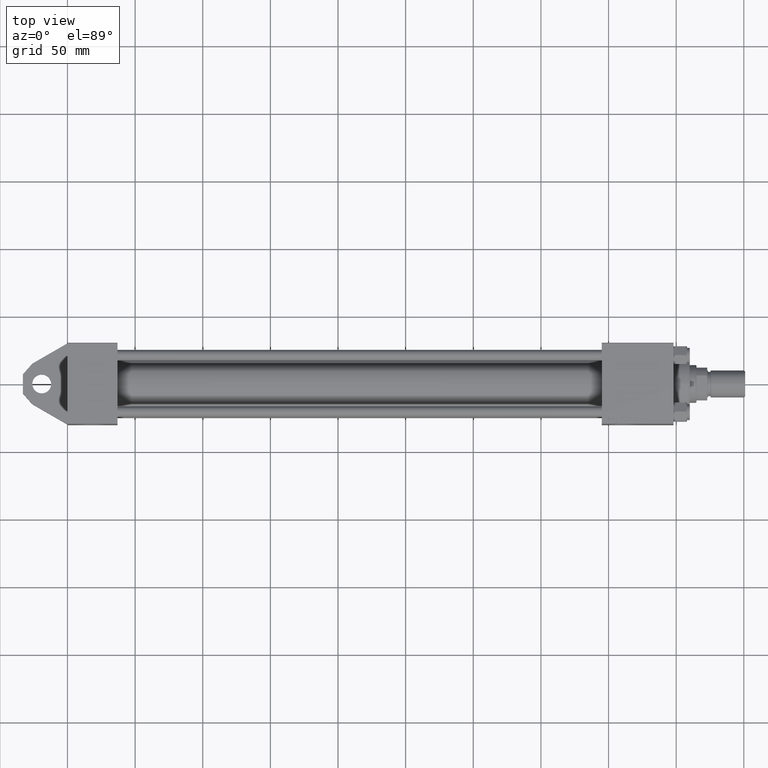
[diagram: clean part render]
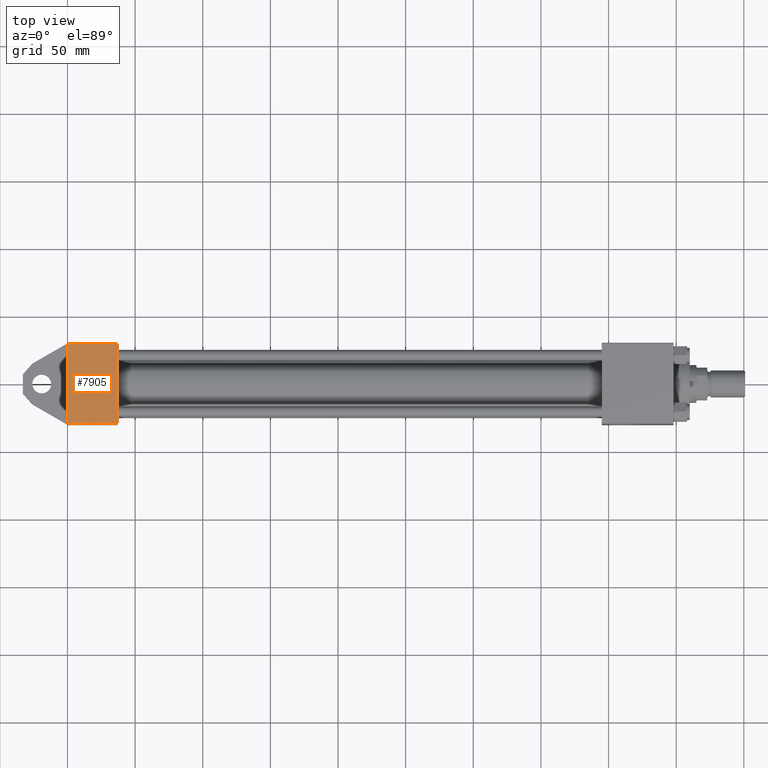
[diagram: same view with one face highlighted and labeled with its STEP entity id]
A machine part, top view. The second image highlights one B-rep face of the part: STEP entity #7905.
In plain terms, the highlighted planar face has unit normal (-0, 0, 1).
Its self-contained STEP definition (entity closure, byte-faithful):
#369 = DIRECTION ( 'NONE',  ( -1.000000000000000000, 0.000000000000000000, 0.000000000000000000 ) ) ;
#3788 = CARTESIAN_POINT ( 'NONE',  ( 0.000000000000000000, 29.99999999999999289, -29.50000000000000000 ) ) ;
#6187 = VERTEX_POINT ( 'NONE', #6929 ) ;
#6929 = CARTESIAN_POINT ( 'NONE',  ( 37.00000000000000000, 29.99999999999999289, 29.50000000000000000 ) ) ;
#7905 = ADVANCED_FACE ( 'NONE', ( #37569 ), #34025, .T. ) ;
#7982 = AXIS2_PLACEMENT_3D ( 'NONE', #12384, #19903, #44158 ) ;
#11589 = EDGE_CURVE ( 'NONE', #29034, #14293, #15934, .T. ) ;
#12054 = VECTOR ( 'NONE', #39588, 1000.000000000000000 ) ;
#12384 = CARTESIAN_POINT ( 'NONE',  ( 37.00000000000000000, 29.99999999999999289, 30.00000000000000000 ) ) ;
#14293 = VERTEX_POINT ( 'NONE', #3788 ) ;
#15934 = LINE ( 'NONE', #37592, #16368 ) ;
#16368 = VECTOR ( 'NONE', #29593, 1000.000000000000000 ) ;
#17476 = LINE ( 'NONE', #38903, #12054 ) ;
#19307 = VECTOR ( 'NONE', #20989, 1000.000000000000000 ) ;
#19903 = DIRECTION ( 'NONE',  ( -0.000000000000000000, 1.000000000000000000, 0.000000000000000000 ) ) ;
#20098 = ORIENTED_EDGE ( 'NONE', *, *, #31866, .T. ) ;
#20989 = DIRECTION ( 'NONE',  ( 1.000000000000000000, 0.000000000000000000, 0.000000000000000000 ) ) ;
#21206 = LINE ( 'NONE', #21903, #19307 ) ;
#21903 = CARTESIAN_POINT ( 'NONE',  ( 37.00000000000000000, 29.99999999999999289, 29.50000000000000000 ) ) ;
#24394 = CARTESIAN_POINT ( 'NONE',  ( 0.000000000000000000, 29.99999999999999289, 29.50000000000000000 ) ) ;
#24847 = CARTESIAN_POINT ( 'NONE',  ( 37.00000000000000000, 29.99999999999999289, -29.50000000000000000 ) ) ;
#25100 = EDGE_LOOP ( 'NONE', ( #27145, #20098, #37158, #44406 ) ) ;
#27145 = ORIENTED_EDGE ( 'NONE', *, *, #41011, .T. ) ;
#29034 = VERTEX_POINT ( 'NONE', #24394 ) ;
#29593 = DIRECTION ( 'NONE',  ( 0.000000000000000000, 0.000000000000000000, -1.000000000000000000 ) ) ;
#31866 = EDGE_CURVE ( 'NONE', #31995, #14293, #32593, .T. ) ;
#31995 = VERTEX_POINT ( 'NONE', #43894 ) ;
#32435 = EDGE_CURVE ( 'NONE', #29034, #6187, #21206, .T. ) ;
#32593 = LINE ( 'NONE', #24847, #45565 ) ;
#34025 = PLANE ( 'NONE',  #7982 ) ;
#37158 = ORIENTED_EDGE ( 'NONE', *, *, #11589, .F. ) ;
#37569 = FACE_OUTER_BOUND ( 'NONE', #25100, .T. ) ;
#37592 = CARTESIAN_POINT ( 'NONE',  ( 0.000000000000000000, 29.99999999999999289, 30.00000000000000000 ) ) ;
#38903 = CARTESIAN_POINT ( 'NONE',  ( 37.00000000000000000, 29.99999999999999289, 30.00000000000000000 ) ) ;
#39588 = DIRECTION ( 'NONE',  ( 0.000000000000000000, 0.000000000000000000, -1.000000000000000000 ) ) ;
#41011 = EDGE_CURVE ( 'NONE', #6187, #31995, #17476, .T. ) ;
#43894 = CARTESIAN_POINT ( 'NONE',  ( 37.00000000000000000, 29.99999999999999289, -29.50000000000000000 ) ) ;
#44158 = DIRECTION ( 'NONE',  ( 0.000000000000000000, -0.000000000000000000, 1.000000000000000000 ) ) ;
#44406 = ORIENTED_EDGE ( 'NONE', *, *, #32435, .T. ) ;
#45565 = VECTOR ( 'NONE', #369, 1000.000000000000000 ) ;